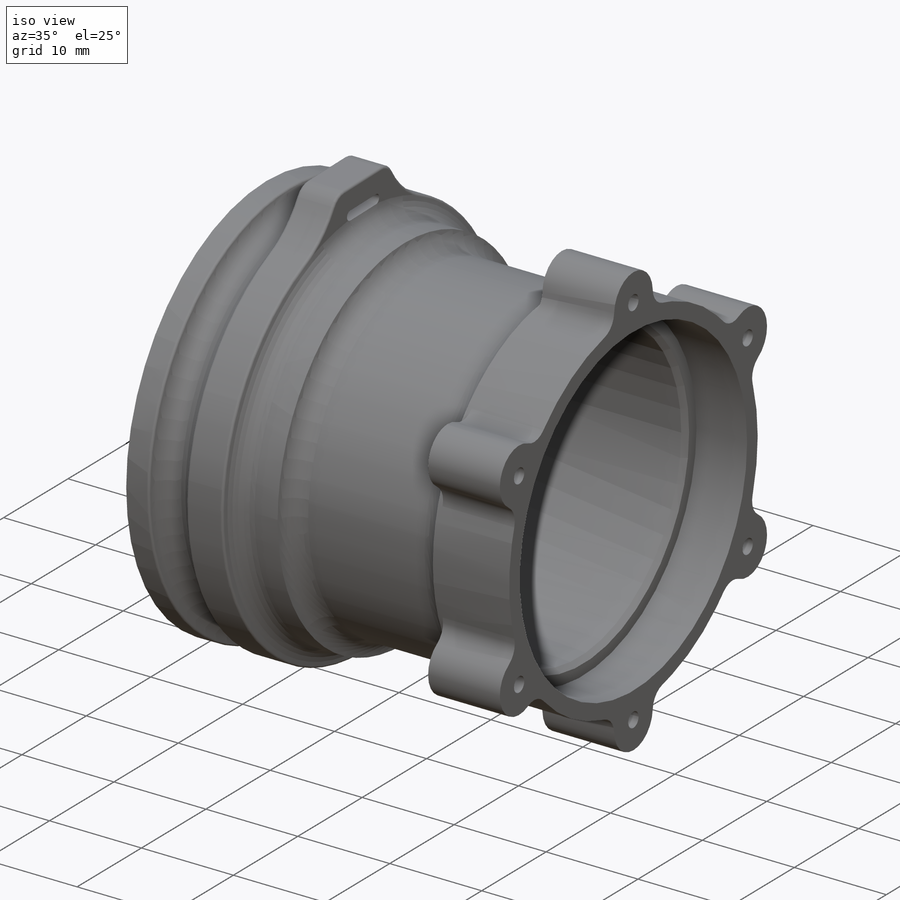
[diagram: iso view]
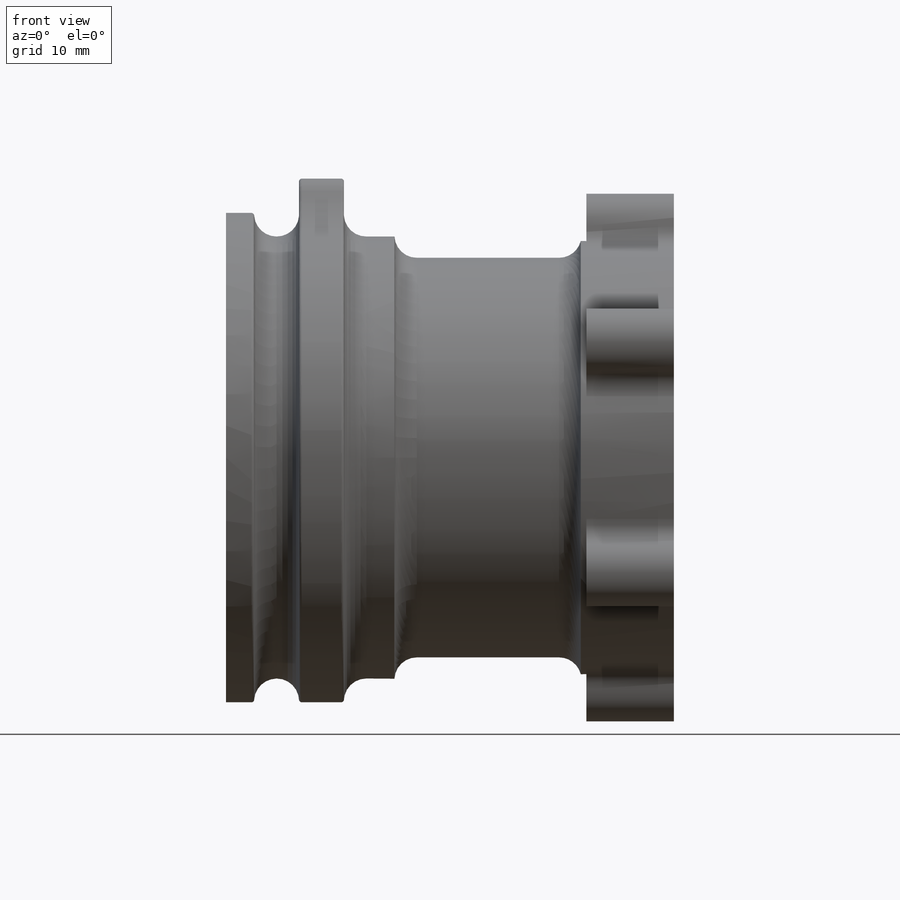
[diagram: front view]
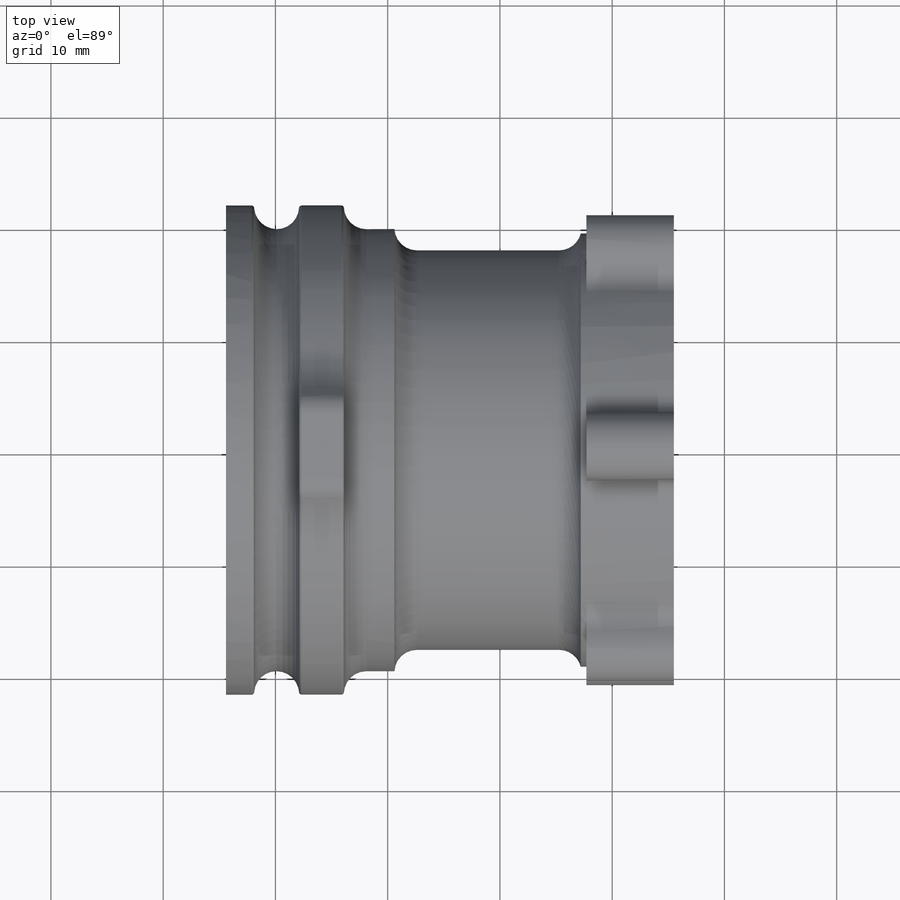
[diagram: top view]
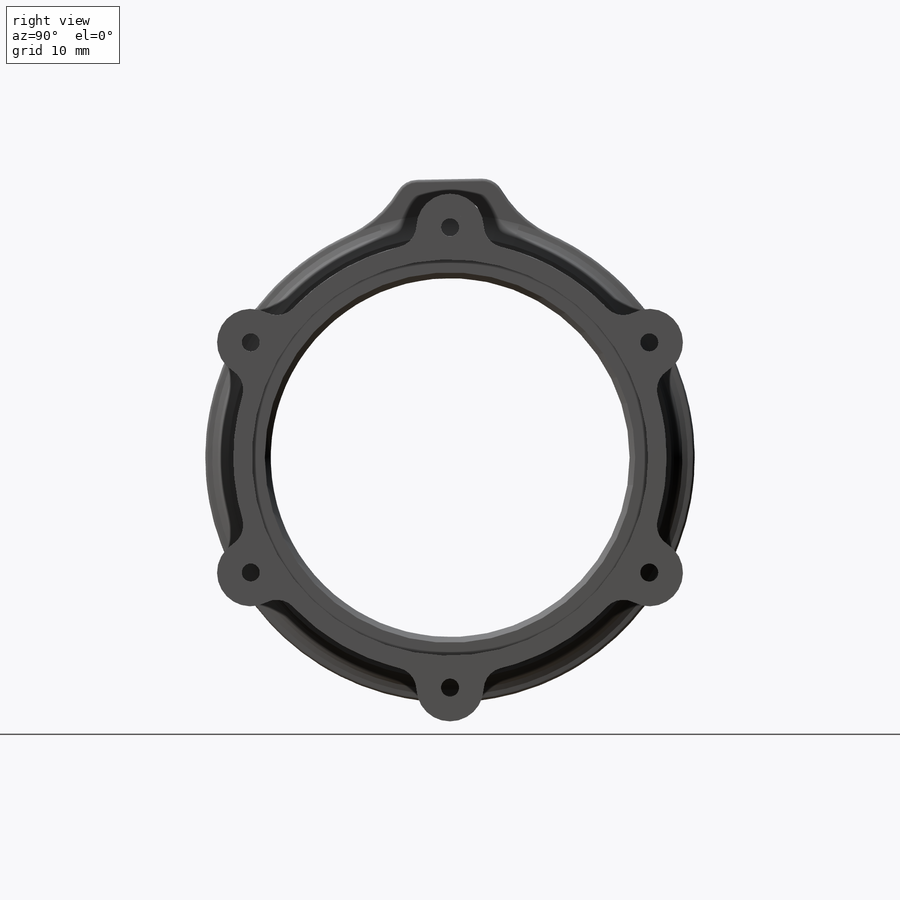
[diagram: right view]
SOLIDWORKS PART (.sldprt)
format: sldprt  version: not decoded by parser v0  size: 714,752 bytes
history: native  units: mm
features: sketch x14, fillet x5, revolve x4, cut_extrude x3, extrude x3, pattern_circular x2, cut_revolve x2, material x1, hole x1, chamfer x1 (+12 scaffold rows collapsed)
feature tree (48):
  scaffold x12  (default folders/planes/origin — collapsed)
  material  "ABS"
  sketch  "Sketch1"  dims[D1=32.0mm D2=1.8mm D3=34.4mm D4=35.0mm D5=2.8mm D6=5.5mm D7=1.8mm]
  revolve  "Revolve1"  Angle=360deg
  sketch  "Sketch2"  dims[D3=7.0mm D1=1.0mm D2=10.5mm]
  cut_extrude  "Cut-Extrude1"  Depth=25mm
  pattern_circular  "CirPattern1"  Count=4 Angle=360deg
  sketch  "Sketch3"  dims[c1.D1=3.0mm c1.D2=32.0mm c1.D3=2.0mm c1.D4=1.5mm c2.D1=5.5mm c2.D3=3.7mm]
  revolve  "Revolve2"  Angle=360deg
  sketch  "Sketch6"  dims[c1.D1=35.6mm c1.D2=2.5mm c1.D3=7.5mm c1.D4=4.0mm c1.D5=2.5mm c1.D6=2.5mm c2.D1=4.0mm c2.D3=2.5mm c2.D5=8.75mm c2.D6=2.5mm c3.D3=4.0mm c3.D6=2.5mm c3.D5=4.0mm]
  revolve  "Revolve3"  Angle=360deg
  sketch  "Sketch7"  dims[D1=6.0mm D2=41.0mm]
  extrude  "Boss-Extrude1"  Depth=7.8mm
  sketch  "Sketch10"
  extrude  "Boss-Extrude2"  [1 undecoded]
  hole  "Tap Drill for M2 Tap1"  Diameter=1.6mm Depth=8mm
  sketch  "Sketch9"
  sketch  "Sketch8"  dims[hole-wizard template sketch: 47 standard entries collapsed; hole parameters kept: c15.Hole Depth=8.0mm c15.D3=~14.816244mm c15.Drill Angle=118.0deg]
  pattern_circular  "CirPattern2"  Count=6 Angle=360deg
  fillet  "Fillet2"  Radius=2mm
  sketch  "Sketch15"  dims[D1=35.3mm]
  cut_extrude  "Cut-Extrude3"  [1 undecoded]
  sketch  "Sketch21"  dims[D1=~31.909846mm D2=~6.462117mm]
  cut_revolve  "Cut-Revolve3"  Angle=360deg
  chamfer  "Chamfer4"  Distance=0.5mm Angle=45deg
  sketch  "Sketch26"  dims[D1=34.4mm D2=12.2mm]
  cut_revolve  "Cut-Revolve7"  Angle=360deg
  sketch  "Sketch29"  dims[D1=2.5mm D2=15.0mm]
  revolve  "Revolve6"  Angle=360deg
  sketch  "Sketch30"  dims[D2=5.0mm D3=5.0mm D1=8.0mm D4=~2.999058mm]
  extrude  "Boss-Extrude3"  [1 undecoded]
  sketch  "Sketch31"  dims[c1.D4=0.5mm c1.D1=4.0mm c1.D2=4.0mm c2.D2=~1.076476deg c3.D2=4.0mm c3.D1=2.8mm c4.D2=~4.005308mm c4.D3=2.0mm]
  cut_extrude  "Cut-Extrude4"  [1 undecoded]
  fillet  "Fillet3"  Radius=10mm
  fillet  "Fillet4"  Radius=2mm
  fillet  "Fillet5"  Radius=2mm
  fillet  "Fillet6"  Radius=0.25mm
decode coverage: 29 of 35 modeling features carry decoded parameters
note: ~ marks probable driven/reference dimensions
note: 4 parameter values undecoded
summary: no parameter record found for 4 features
note: suppression state not decoded; provenance and decode notes live in map.json
